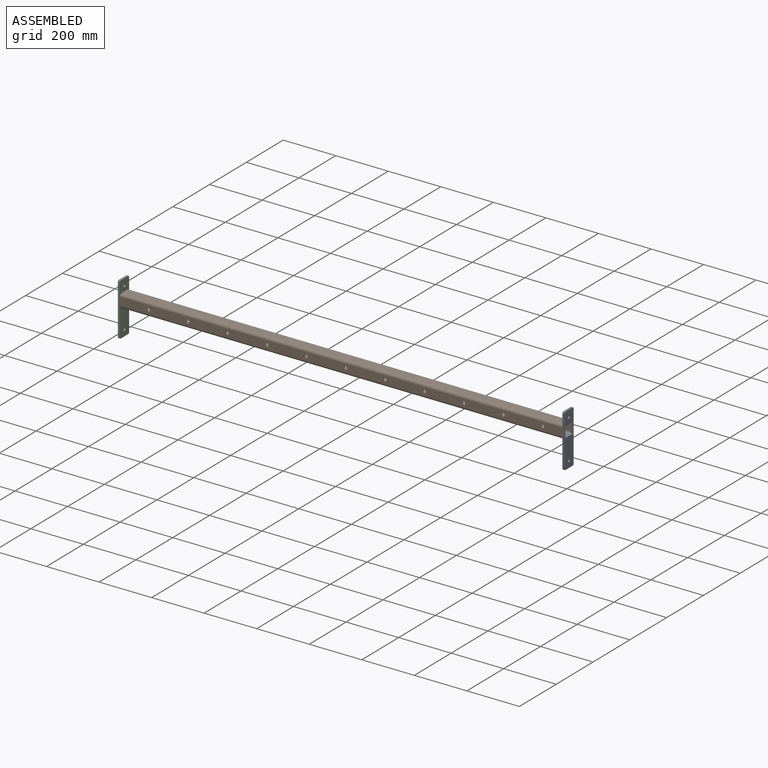
[diagram: assembled view]
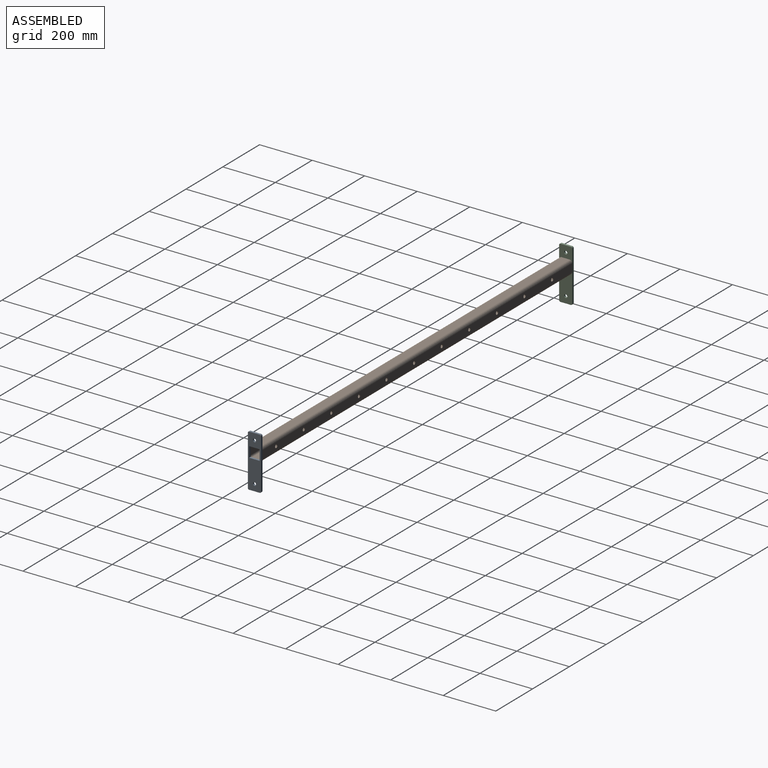
[diagram: assembled view, second angle]
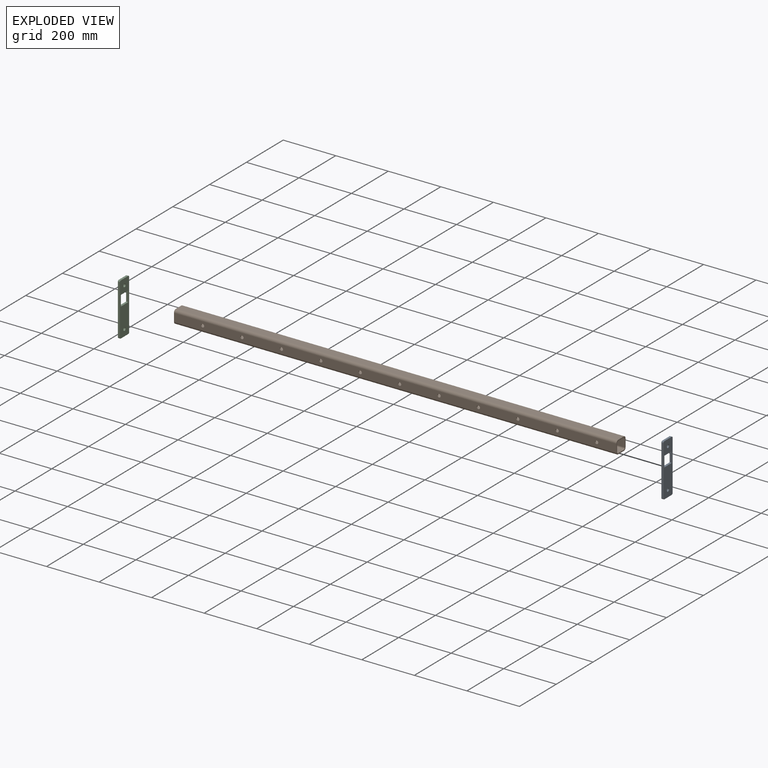
[diagram: exploded view]
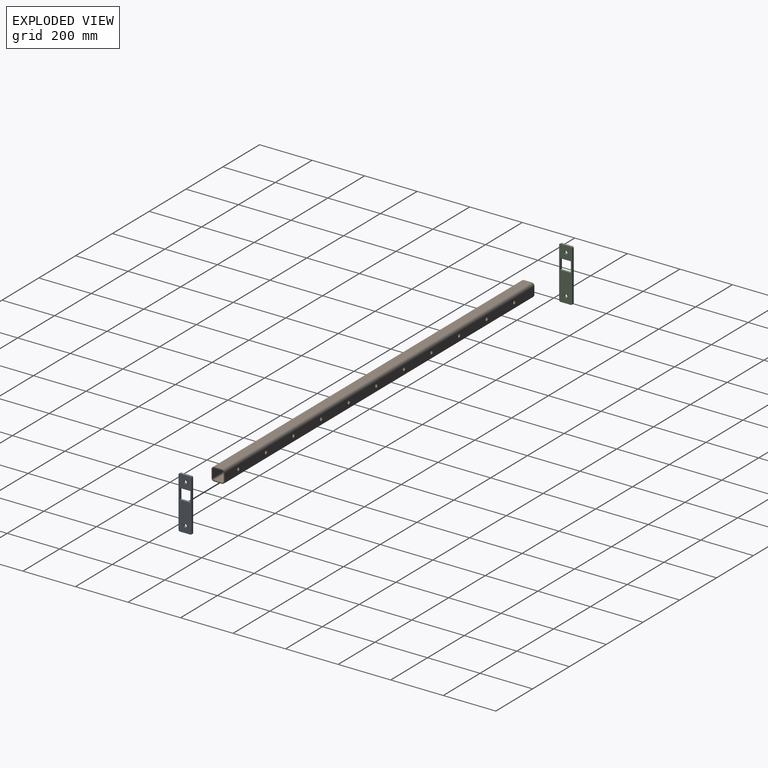
[diagram: exploded view, second angle]
ASSEMBLY  parts=3 mates=2
PART A: 16 faces, bbox 8x50x200 mm
  f0: plane 40x8mm, normal (0,0,1), area 320mm2, adj f1,f13,f14,f15
  f1: cylinder r=5mm len=8mm, axis (1,0,0), area 62.8mm2, adj f0,f2,f14,f15
  f2: plane 190x8mm, normal (0,-1,0), area 1520mm2, adj f1,f3,f14,f15
  f3: cylinder r=5mm len=8mm, axis (1,0,0), area 62.8mm2, adj f2,f4,f14,f15
  f4: plane 40x8mm, normal (0,0,-1), area 320mm2, adj f3,f5,f14,f15
  f5: cylinder r=5mm len=8mm, axis (1,0,0), area 62.8mm2, adj f4,f6,f14,f15
  f6: plane 190x8mm, normal (0,1,0), area 1520mm2, adj f5,f13,f14,f15
  f7: plane 40x8mm, normal (0,1,0), area 320mm2, adj f8,f12,f14,f15
  f8: plane 40x8mm, normal (0,0,-1), area 320mm2, adj f7,f9,f14,f15
  f9: plane 40x8mm, normal (0,-1,0), area 320mm2, adj f8,f12,f14,f15
  f10: cylinder r=6.1mm len=12.2mm, axis (1,0,0), area 306.6mm2, adj f14,f15
  f11: cylinder r=6.1mm len=12.2mm, axis (1,0,0), area 306.6mm2, adj f14,f15
  f12: plane 40x8mm, normal (0,0,1), area 320mm2, adj f7,f9,f14,f15
  f13: cylinder r=5mm len=8mm, axis (1,0,0), area 62.8mm2, adj f0,f6,f14,f15
  f14: plane 200x50mm, normal (-1,0,0), area 8144.7mm2, adj f0,f1,f2,f3,f4,f5,f6,f7
  f15: plane 200x50mm, normal (1,0,0), area 8144.7mm2, adj f0,f1,f2,f3,f4,f5,f6,f7
PART B: 40 faces, bbox 1684x50x50 mm
  f0: plane 1684x30mm, normal (0,0,1), area 50520mm2, adj f8,f9,f10,f13
  f1: plane 1684x30mm, normal (0,-1,0), area 49234.1mm2, adj f8,f9,f10,f11,f29,f30,f31,f32
  f2: plane 1684x30mm, normal (0,0,-1), area 50520mm2, adj f8,f9,f11,f12
  f3: plane 1684x30mm, normal (0,1,0), area 49234.1mm2, adj f8,f9,f14,f17,f29,f30,f31,f32
  f4: plane 1684x30mm, normal (0,0,-1), area 50520mm2, adj f8,f9,f14,f15
  f5: plane 1684x30mm, normal (0,-1,0), area 49234.1mm2, adj f8,f9,f15,f16,f18,f19,f20,f21
  f6: plane 1684x30mm, normal (0,0,1), area 50520mm2, adj f8,f9,f16,f17
  f7: plane 1684x30mm, normal (0,1,0), area 49234.1mm2, adj f8,f9,f12,f13,f18,f19,f20,f21
  f8: plane 50x50mm, normal (1,0,0), area 681.1mm2, adj f0,f1,f2,f3,f4,f5,f6,f7
  f9: plane 50x50mm, normal (-1,0,0), area 681.1mm2, adj f0,f1,f2,f3,f4,f5,f6,f7
  f10: cylinder r=10mm len=1684mm, axis (1,0,0), area 26452.2mm2, adj f0,f1,f8,f9
  f11: cylinder r=10mm len=1684mm, axis (-1,0,0), area 26452.2mm2, adj f1,f2,f8,f9
  f12: cylinder r=10mm len=1684mm, axis (1,0,0), area 26452.2mm2, adj f2,f7,f8,f9
  f13: cylinder r=10mm len=1684mm, axis (-1,0,0), area 26452.2mm2, adj f0,f7,f8,f9
  f14: cylinder r=6mm len=1684mm, axis (-1,0,0), area 15871.3mm2, adj f3,f4,f8,f9
  f15: cylinder r=6mm len=1684mm, axis (1,0,0), area 15871.3mm2, adj f4,f5,f8,f9
  f16: cylinder r=6mm len=1684mm, axis (-1,0,0), area 15871.3mm2, adj f5,f6,f8,f9
  f17: cylinder r=6mm len=1684mm, axis (1,0,0), area 15871.3mm2, adj f3,f6,f8,f9
  f18: cylinder r=6.1mm len=12.2mm, axis (0,-1,0), area 153.3mm2, adj f5,f7
  f19: cylinder r=6.1mm len=12.2mm, axis (0,-1,0), area 153.3mm2, adj f5,f7
  f20: cylinder r=6.1mm len=12.2mm, axis (0,-1,0), area 153.3mm2, adj f5,f7
  f21: cylinder r=6.1mm len=12.2mm, axis (0,-1,0), area 153.3mm2, adj f5,f7
  f22: cylinder r=6.1mm len=12.2mm, axis (0,-1,0), area 153.3mm2, adj f5,f7
  f23: cylinder r=6.1mm len=12.2mm, axis (0,-1,0), area 153.3mm2, adj f5,f7
  f24: cylinder r=6.1mm len=12.2mm, axis (0,-1,0), area 153.3mm2, adj f5,f7
  f25: cylinder r=6.1mm len=12.2mm, axis (0,-1,0), area 153.3mm2, adj f5,f7
  f26: cylinder r=6.1mm len=12.2mm, axis (0,-1,0), area 153.3mm2, adj f5,f7
  f27: cylinder r=6.1mm len=12.2mm, axis (0,-1,0), area 153.3mm2, adj f5,f7
  f28: cylinder r=6.1mm len=12.2mm, axis (0,-1,0), area 153.3mm2, adj f5,f7
  f29: cylinder r=6.1mm len=12.2mm, axis (0,-1,0), area 153.3mm2, adj f1,f3
  f30: cylinder r=6.1mm len=12.2mm, axis (0,-1,0), area 153.3mm2, adj f1,f3
  f31: cylinder r=6.1mm len=12.2mm, axis (0,-1,0), area 153.3mm2, adj f1,f3
  f32: cylinder r=6.1mm len=12.2mm, axis (0,-1,0), area 153.3mm2, adj f1,f3
  f33: cylinder r=6.1mm len=12.2mm, axis (0,-1,0), area 153.3mm2, adj f1,f3
  f34: cylinder r=6.1mm len=12.2mm, axis (0,-1,0), area 153.3mm2, adj f1,f3
  f35: cylinder r=6.1mm len=12.2mm, axis (0,-1,0), area 153.3mm2, adj f1,f3
  f36: cylinder r=6.1mm len=12.2mm, axis (0,-1,0), area 153.3mm2, adj f1,f3
  f37: cylinder r=6.1mm len=12.2mm, axis (0,-1,0), area 153.3mm2, adj f1,f3
  f38: cylinder r=6.1mm len=12.2mm, axis (0,-1,0), area 153.3mm2, adj f1,f3
  f39: cylinder r=6.1mm len=12.2mm, axis (0,-1,0), area 153.3mm2, adj f1,f3
PART C: same geometry as A
PLACE A t=(1548.92,837.79,-537.6)mm
PLACE B t=(-143.08,234.21,-39.08)mm
PLACE C t=(-143.08,837.79,-537.6)mm
MATE fastened A.f14 <-> B.f8  axis (-1,0,0) through (1540.92,85.35,-55.93)mm
MATE fastened C.f15 <-> B.f9  axis (1,0,0) through (-143.08,85.35,-55.93)mm
